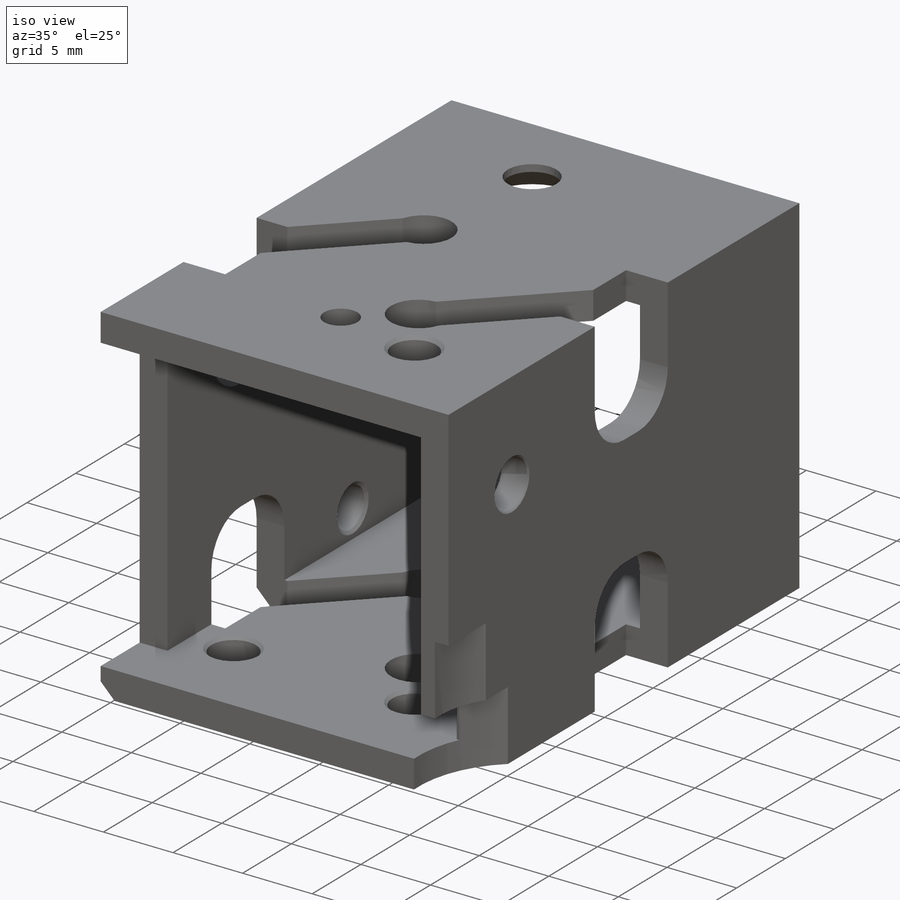
[diagram: iso view]
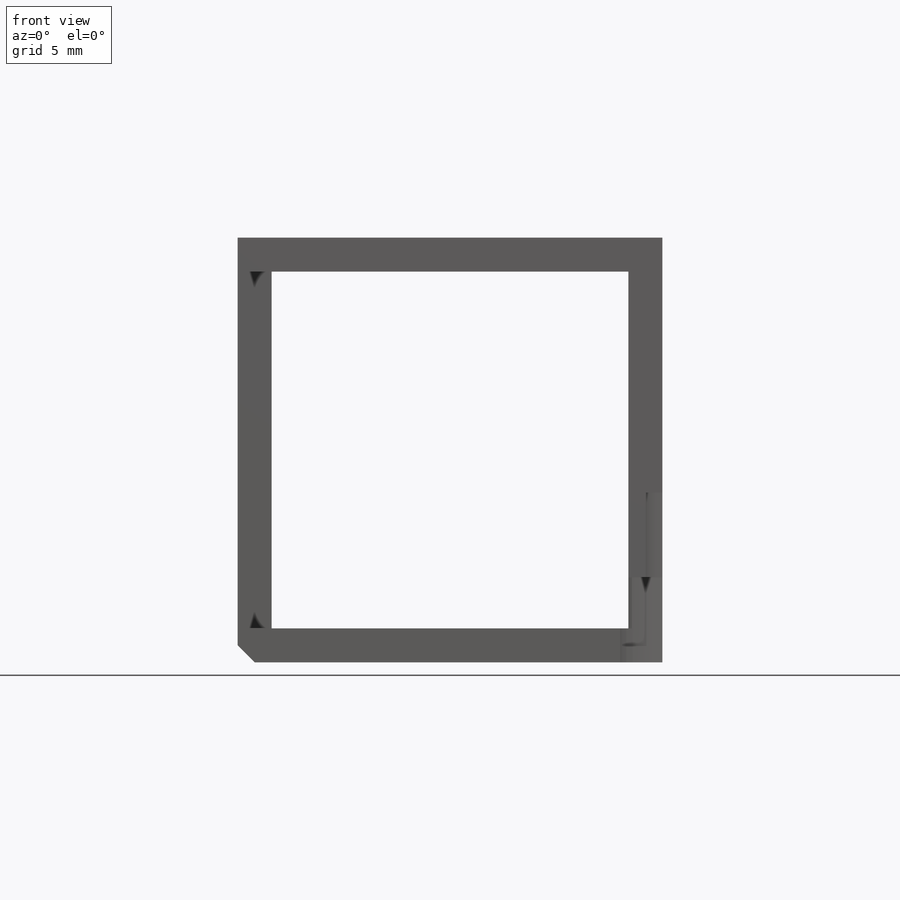
[diagram: front view]
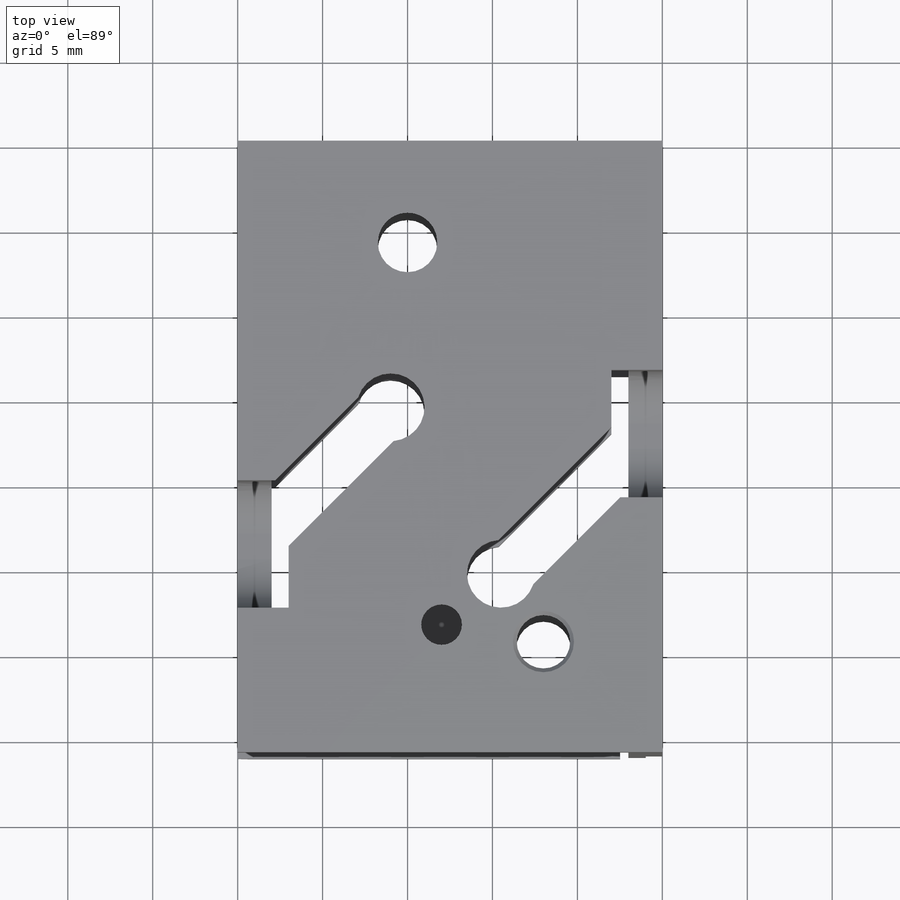
[diagram: top view]
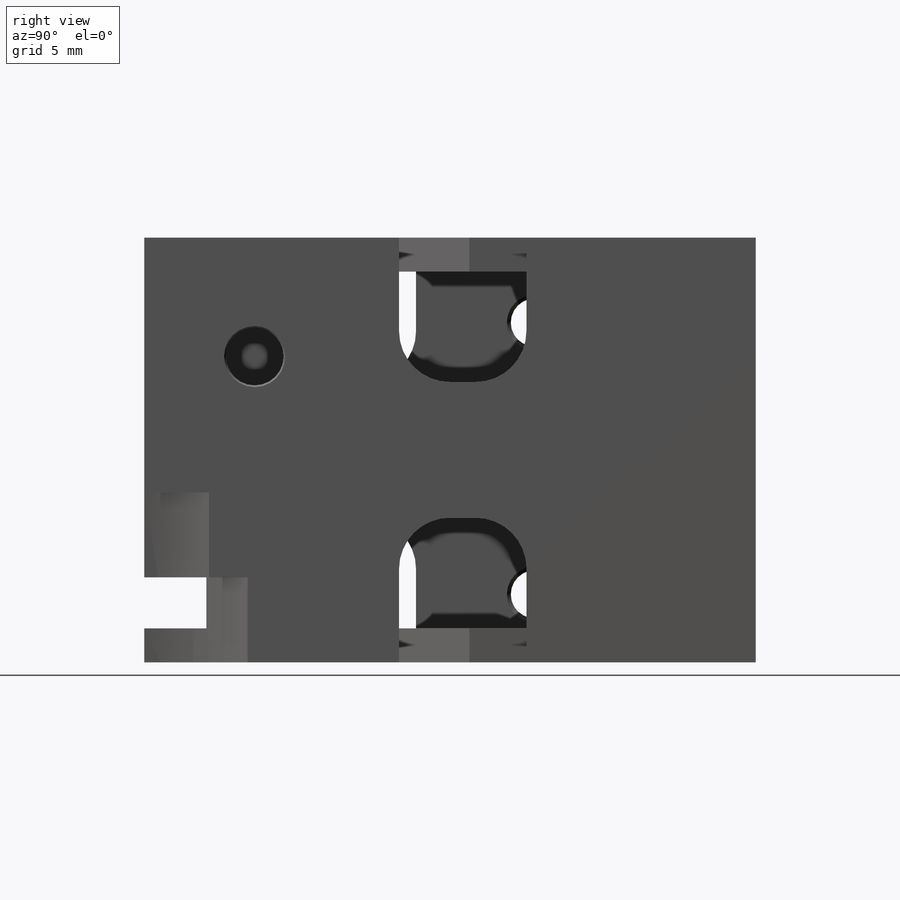
[diagram: right view]
SOLIDWORKS PART (.sldprt)
format: sldprt  version: not decoded by parser v0  size: 744,448 bytes
history: native  units: mm
features: sketch x22, cut_extrude x11, hole x5, chamfer x4, material x1, extrude x1 (+14 scaffold rows collapsed)
feature tree (58):
  scaffold x14  (default folders/planes/origin — collapsed)
  material  "6063-T1"
  sketch  "Эскиз1"  dims[D1=2.0mm D2=2.0mm D3=25.0mm D4=25.0mm D5=2.0mm D6=2.0mm]
  extrude  "Вытянуть1"  Depth=36mm
  sketch  "Эскиз11"  dims[c1.D6=4.0mm c1.D7=5.0mm c1.D5=5.0mm c1.D8=5.0mm c2.D7=5.0mm c2.D5=5.0mm c2.D10=5.0mm c3.D5=4.0mm c3.D7=4.0mm c3.D8=4.0mm c3.D10=4.0mm c3.D1=3.3mm c3.D2=3.3mm c3.D3=8.48mm c3.D4=~15.623013mm c4.D4=45.0deg c4.D5=6.0mm c4.D7=12.5mm c5.D5=16.0mm c5.D8=14.0mm c5.D9=16.0mm c5.D10=3.0mm c5.D7=10.8mm c6.D5=14.0mm c6.D10=27.0mm c6.D9=19.0mm c7.D5=15.7mm c7.D7=9.0mm c7.D8=25.5mm c7.D10=9.5mm]
  cut_extrude  "Вырез-Вытянуть3"  Depth=7mm
  cut_extrude  "Вырез-Вытянуть11"  [1 undecoded]
  sketch  "Эскиз11<3>"  dims[D19=19.0mm]
  sketch  "Эскиз12"  dims[D1=3.0mm D2=4.0mm D3=10.0mm]
  cut_extrude  "Вырез-Вытянуть4"  Depth=1.5mm
  sketch  "Эскиз13"  dims[D1=13.0mm]
  cut_extrude  "Вырез-Вытянуть5"  Depth=2mm
  hole  "Отверстие с зазором M21"  [1 undecoded]
  sketch  "Эскиз22"  dims[D1=28.5mm D2=12.0mm]
  sketch  "Эскиз21"  dims[hole-wizard template sketch: 46 standard entries collapsed; hole parameters kept: c15.Диаметр сквозного отверстия=2.4mm c15.Глубина сквозного отверстия=69.2mm c15.Диаметр передней зенковки=2.45mm c15.D4=~3.666174mm c15.Угол передней зенковки=90.0deg c15.Диаметр задней зенковки=2.45mm c15.D6=~9.919017mm c15.Угол задней зенковки=90.0deg]
  chamfer  "Фаска2"  Distance=1mm Angle=45deg
  chamfer  "Фаска4"  Distance=1mm Angle=53deg
  sketch  "Эскиз14"  dims[c1.D1=15.0mm c1.D2=14.5mm c1.D3=14.5mm c2.D2=5.0mm c2.D3=0.5mm]
  cut_extrude  "Вырез-Вытянуть6"  Depth=5mm
  chamfer  "Фаска5"  Distance=0.5mm
  sketch  "Эскиз20"  dims[D1=4.0mm]
  cut_extrude  "Вырез-Вытянуть8"  [1 undecoded]
  hole  "3.2_для_отсека_кюветы"  [1 undecoded]
  sketch  "Эскиз16"  dims[c1.D1=4.0mm c1.D2=14.0mm c1.D3=13.0mm c2.D1=3.0mm c2.D2=13.0mm c2.D3=6.5mm]
  sketch  "Эскиз15"  dims[hole-wizard template sketch: 47 standard entries collapsed; hole parameters kept: c15.Глубина сквозного отверстия=2.0mm c15.Диаметр передней зенковки=3.6mm c15.D4=~3.666174mm c15.Угол передней зенковки=90.0deg c15.Диаметр задней зенковки=3.6mm c15.D6=~9.919017mm c15.Угол задней зенковки=90.0deg]
  hole  "Отверстие обработанное метчиком #4-401"  [1 undecoded]
  sketch  "Эскиз18"  dims[D1=13.0mm D2=15.0mm D3=4.0mm D4=16.0mm]
  sketch  "Эскиз17"  dims[hole-wizard template sketch: 47 standard entries collapsed; hole parameters kept: c15.Глубина проходного сверла=2.0mm c15.Диаметр передней зенковки=3.302mm c15.D4=~3.666174mm c15.Угол передней зенковки=110.0deg c15.Диаметр задней зенковки=3.302mm c15.D6=~9.919017mm c15.Угол задней зенковки=110.0deg]
  sketch  "Эскиз19"  dims[c1.D1=52.0mm c1.D2=50.0mm c1.D3=50.0mm c2.D2=13.0mm c2.D3=7.0mm]
  cut_extrude  "Вырез_для_старой_шторки"  Depth=1.5mm
  sketch  "Эскиз23"  dims[D2=3.0mm D1=8.5mm D3=8.0mm D4=7.5mm]
  cut_extrude  "Вырез-Вытянуть13"  Depth=3mm
  sketch  "Эскиз24"  dims[D1=3.0mm D2=15.0mm D3=7.5mm D4=8.0mm]
  cut_extrude  "Вырез-Вытянуть14"  Depth=3mm
  sketch  "Эскиз25"  dims[c1.D1=3.5mm c1.D2=3.5mm c1.D3=3.5mm c2.D2=6.0mm c2.D3=15.0mm]
  cut_extrude  "Вырез-Вытянуть15"  [1 undecoded]
  sketch  "Эскиз26"  dims[D1=12.0mm]
  cut_extrude  "Вырез-Вытянуть16"  Depth=5mm
  hole  "Сверло под метчик  спиральное M31"  [1 undecoded]
  sketch  "Эскиз28"
  sketch  "Эскиз27"  dims[hole-wizard template sketch: 46 standard entries collapsed; hole parameters kept: c15.Диаметр сквозного отверстия=3.15mm c15.Глубина сквозного отверстия=2.0mm c15.Диаметр передней зенковки=3.6mm c15.D4=~3.666174mm c15.Угол передней зенковки=90.0deg c15.Диаметр задней зенковки=3.6mm c15.D6=~9.919017mm c15.Угол задней зенковки=90.0deg]
  chamfer  "Фаска6"  Distance=1.5mm Angle=45deg
  hole  "Отверстие с зазором M32"  [1 undecoded]
  sketch  "Эскиз30"  dims[D1=6.5mm D2=18.0mm]
  sketch  "Эскиз29"  dims[hole-wizard template sketch: 47 standard entries collapsed; hole parameters kept: c15.Глубина сквозного отверстия=2.0mm c15.Диаметр передней зенковки=3.6mm c15.D4=~3.666174mm c15.Угол передней зенковки=90.0deg c15.Диаметр задней зенковки=3.6mm c15.D6=~9.919017mm c15.Угол задней зенковки=90.0deg]
decode coverage: 34 of 43 modeling features carry decoded parameters
note: ~ marks probable driven/reference dimensions
note: 8 parameter values undecoded
summary: no parameter record found for 8 features
note: suppression state not decoded; provenance and decode notes live in map.json
